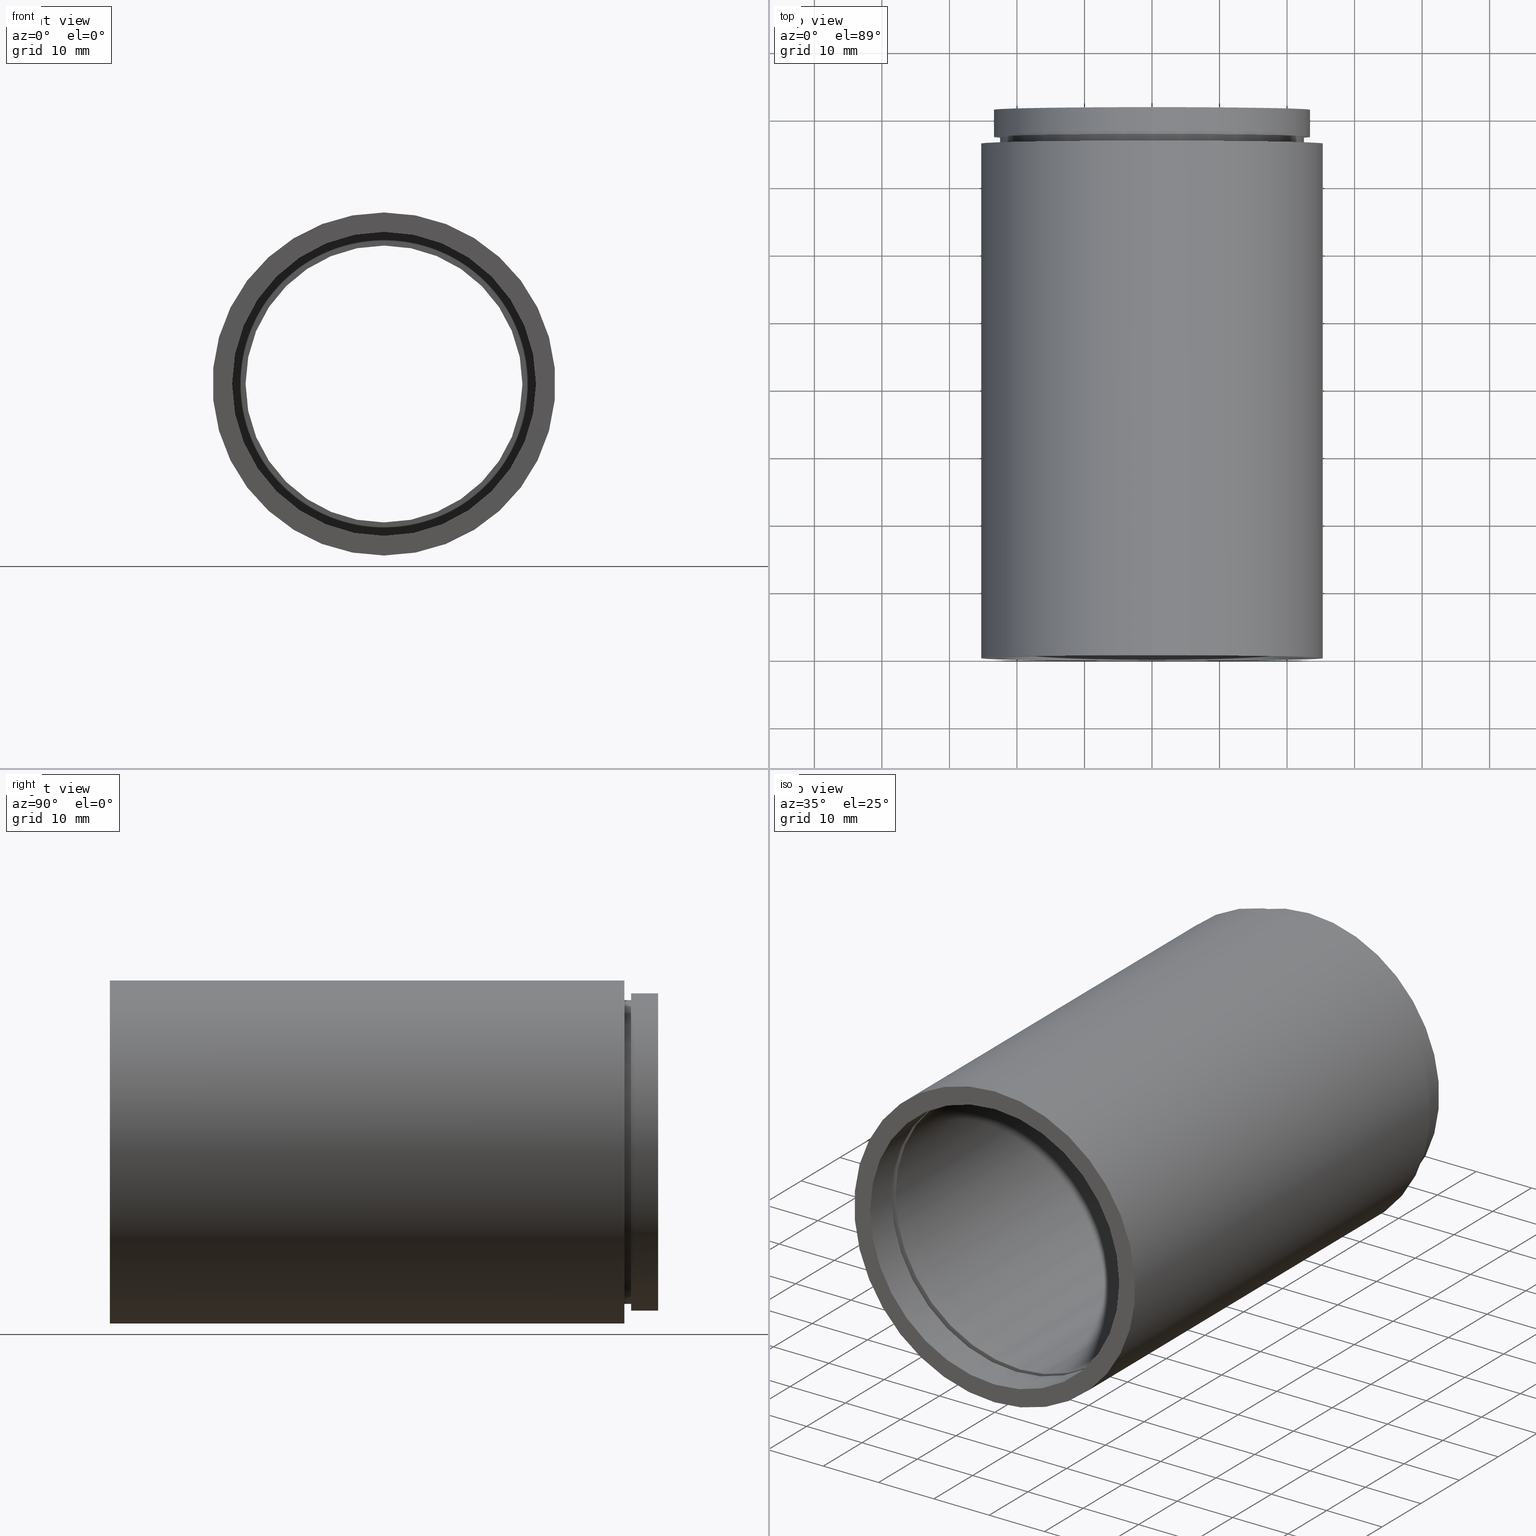
[diagram: canonical four-view strip — front | top / right | iso, engineering-drawing reading convention]
A machine part, canonical four-view strip (front | top / right | iso — engineering-drawing reading convention). The complete STEP part file that produces these views, byte-faithful:
ISO-10303-21;
HEADER;
FILE_DESCRIPTION (( 'STEP AP214' ),
    '1' );
FILE_NAME ('503011.STEP',
    '2019-09-04T07:34:36',
    ( '' ),
    ( '' ),
    'SwSTEP 2.0',
    'SolidWorks 2016',
    '' );
FILE_SCHEMA (( 'AUTOMOTIVE_DESIGN' ));
ENDSEC;

DATA;
#1 = DIRECTION ( 'NONE',  ( 0.0000000000000000000, 0.0000000000000000000, 1.000000000000000000 ) ) ;
#2 = EDGE_CURVE ( 'NONE', #404, #81, #217, .T. ) ;
#3 =( NAMED_UNIT ( * ) PLANE_ANGLE_UNIT ( ) SI_UNIT ( $, .RADIAN. ) );
#4 = UNCERTAINTY_MEASURE_WITH_UNIT (LENGTH_MEASURE( 1.000000000000000100E-005 ), #578, 'distance_accuracy_value', 'NONE');
#5 = VECTOR ( 'NONE', #87, 1000.000000000000000 ) ;
#6 = CARTESIAN_POINT ( 'NONE',  ( 0.0000000000000000000, 161.3761669434274500, 22.50000000000002100 ) ) ;
#7 =( NAMED_UNIT ( * ) PLANE_ANGLE_UNIT ( ) SI_UNIT ( $, .RADIAN. ) );
#8 = AXIS2_PLACEMENT_3D ( 'NONE', #257, #319, #1 ) ;
#9 = SURFACE_STYLE_USAGE ( .BOTH. , #746 ) ;
#10 = DIRECTION ( 'NONE',  ( -0.0000000000000000000, 1.000000000000000000, -0.0000000000000000000 ) ) ;
#11 = AXIS2_PLACEMENT_3D ( 'NONE', #72, #513, #571 ) ;
#12 = CIRCLE ( 'NONE', #753, 23.49999999999986500 ) ;
#13 = EDGE_CURVE ( 'NONE', #609, #79, #711, .T. ) ;
#14 = DIRECTION ( 'NONE',  ( -0.0000000000000000000, 1.000000000000000000, -0.0000000000000000000 ) ) ;
#15 = CIRCLE ( 'NONE', #339, 22.49999999999987200 ) ;
#16 = DIRECTION ( 'NONE',  ( -0.0000000000000000000, 1.000000000000000000, -0.0000000000000000000 ) ) ;
#17 = MECHANICAL_DESIGN_GEOMETRIC_PRESENTATION_REPRESENTATION (  '', ( #60 ), #256 ) ;
#18 = CLOSED_SHELL ( 'NONE', ( #633, #582, #399, #590, #452, #459, #20, #272, #86, #698, #408, #147, #715, #575, #80, #515, #768, #267, #201, #396, #388, #706, #570, #288 ) ) ;
#19 = DIRECTION ( 'NONE',  ( -0.0000000000000000000, 1.000000000000000000, -0.0000000000000000000 ) ) ;
#20 = ADVANCED_FACE ( 'NONE', ( #567 ), #216, .F. ) ;
#21 = CARTESIAN_POINT ( 'NONE',  ( 0.0000000000000000000, 6.499999999999977800, 0.0000000000000000000 ) ) ;
#22 = CARTESIAN_POINT ( 'NONE',  ( 0.0000000000000000000, 73.19999999999998900, 0.0000000000000000000 ) ) ;
#23 = DIRECTION ( 'NONE',  ( -0.0000000000000000000, 1.000000000000000000, 0.0000000000000000000 ) ) ;
#24 = PRESENTATION_LAYER_ASSIGNMENT (  '', '', ( #372 ) ) ;
#25 = CARTESIAN_POINT ( 'NONE',  ( 2.877919977996263800E-015, 161.3761669434274500, -23.49999999999986500 ) ) ;
#26 = MECHANICAL_DESIGN_GEOMETRIC_PRESENTATION_REPRESENTATION (  '', ( #211 ), #180 ) ;
#27 = PRESENTATION_STYLE_ASSIGNMENT (( #569 ) ) ;
#28 = DIRECTION ( 'NONE',  ( 0.0000000000000000000, 0.0000000000000000000, 1.000000000000000000 ) ) ;
#29 = VECTOR ( 'NONE', #428, 1000.000000000000000 ) ;
#30 = ORIENTED_EDGE ( 'NONE', *, *, #610, .F. ) ;
#31 = CARTESIAN_POINT ( 'NONE',  ( 0.0000000000000000000, 76.20000000000000300, 0.0000000000000000000 ) ) ;
#32 = EDGE_CURVE ( 'NONE', #298, #317, #800, .T. ) ;
#33 =( NAMED_UNIT ( * ) SI_UNIT ( $, .STERADIAN. ) SOLID_ANGLE_UNIT ( ) );
#34 = DIRECTION ( 'NONE',  ( -0.0000000000000000000, 1.000000000000000000, -0.0000000000000000000 ) ) ;
#35 = MECHANICAL_DESIGN_GEOMETRIC_PRESENTATION_REPRESENTATION (  '', ( #184 ), #788 ) ;
#36 = CYLINDRICAL_SURFACE ( 'NONE', #191, 25.40000000000001300 ) ;
#37 = CIRCLE ( 'NONE', #702, 22.50000000000002100 ) ;
#38 = CARTESIAN_POINT ( 'NONE',  ( 20.50000000000001100, 81.19999999999998900, 0.0000000000000000000 ) ) ;
#39 = FACE_OUTER_BOUND ( 'NONE', #68, .T. ) ;
#40 =( NAMED_UNIT ( * ) SI_UNIT ( $, .STERADIAN. ) SOLID_ANGLE_UNIT ( ) );
#41 = EDGE_LOOP ( 'NONE', ( #629, #58, #782, #640 ) ) ;
#42 = EDGE_CURVE ( 'NONE', #438, #432, #789, .T. ) ;
#43 = VERTEX_POINT ( 'NONE', #127 ) ;
#44 = SURFACE_SIDE_STYLE ('',( #129 ) ) ;
#45 = SURFACE_STYLE_USAGE ( .BOTH. , #44 ) ;
#46 = FACE_OUTER_BOUND ( 'NONE', #359, .T. ) ;
#47 = ORIENTED_EDGE ( 'NONE', *, *, #146, .T. ) ;
#48 = PLANE ( 'NONE',  #593 ) ;
#49 = EDGE_LOOP ( 'NONE', ( #111, #235, #681, #701 ) ) ;
#50 = DIRECTION ( 'NONE',  ( 0.0000000000000000000, 0.0000000000000000000, 1.000000000000000000 ) ) ;
#51 = AXIS2_PLACEMENT_3D ( 'NONE', #69, #74, #446 ) ;
#52 =( GEOMETRIC_REPRESENTATION_CONTEXT ( 3 ) GLOBAL_UNCERTAINTY_ASSIGNED_CONTEXT ( ( #4 ) ) GLOBAL_UNIT_ASSIGNED_CONTEXT ( ( #578, #212, #759 ) ) REPRESENTATION_CONTEXT ( 'NONE', 'WORKASPACE' ) );
#53 = ADVANCED_BREP_SHAPE_REPRESENTATION ( '503011', ( #213, #356 ), #266 ) ;
#54 =( NAMED_UNIT ( * ) PLANE_ANGLE_UNIT ( ) SI_UNIT ( $, .RADIAN. ) );
#55 = FACE_BOUND ( 'NONE', #170, .T. ) ;
#56 = FACE_OUTER_BOUND ( 'NONE', #471, .T. ) ;
#57 = DIRECTION ( 'NONE',  ( 0.0000000000000000000, 0.0000000000000000000, 1.000000000000000000 ) ) ;
#58 = ORIENTED_EDGE ( 'NONE', *, *, #169, .T. ) ;
#59 = SURFACE_SIDE_STYLE ('',( #224 ) ) ;
#60 = STYLED_ITEM ( 'NONE', ( #483 ), #399 ) ;
#61 = DIRECTION ( 'NONE',  ( 0.0000000000000000000, 0.0000000000000000000, 1.000000000000000000 ) ) ;
#62 = FILL_AREA_STYLE ('',( #624 ) ) ;
#63 = CARTESIAN_POINT ( 'NONE',  ( 0.0000000000000000000, 161.3761669434274500, 0.0000000000000000000 ) ) ;
#64 = PRESENTATION_LAYER_ASSIGNMENT (  '', '', ( #184 ) ) ;
#65 = DIRECTION ( 'NONE',  ( 0.0000000000000000000, 0.0000000000000000000, 1.000000000000000000 ) ) ;
#66 = VERTEX_POINT ( 'NONE', #626 ) ;
#67 = ORIENTED_EDGE ( 'NONE', *, *, #284, .T. ) ;
#68 = EDGE_LOOP ( 'NONE', ( #254, #650, #76, #133 ) ) ;
#69 = CARTESIAN_POINT ( 'NONE',  ( 0.0000000000000000000, 6.499999999999977800, 0.0000000000000000000 ) ) ;
#70 = EDGE_CURVE ( 'NONE', #232, #357, #657, .T. ) ;
#71 = CARTESIAN_POINT ( 'NONE',  ( 2.510525938252075300E-015, 81.19999999999998900, -20.50000000000001100 ) ) ;
#72 = CARTESIAN_POINT ( 'NONE',  ( 25.40000000000000900, 76.20000000000000300, 0.0000000000000000000 ) ) ;
#73 = COLOUR_RGB ( '',1.000000000000000000, 1.000000000000000000, 1.000000000000000000 ) ;
#74 = DIRECTION ( 'NONE',  ( -0.0000000000000000000, 1.000000000000000000, -0.0000000000000000000 ) ) ;
#75 = CARTESIAN_POINT ( 'NONE',  ( 2.877919977996264100E-015, 161.3761669434274500, -23.49999999999986900 ) ) ;
#76 = ORIENTED_EDGE ( 'NONE', *, *, #653, .T. ) ;
#77 = MECHANICAL_DESIGN_GEOMETRIC_PRESENTATION_REPRESENTATION (  '', ( #220 ), #175 ) ;
#78 = DIRECTION ( 'NONE',  ( 0.0000000000000000000, -1.000000000000000000, 0.0000000000000000000 ) ) ;
#79 = VERTEX_POINT ( 'NONE', #617 ) ;
#80 = ADVANCED_FACE ( 'NONE', ( #490, #619 ), #202, .F. ) ;
#81 = VERTEX_POINT ( 'NONE', #199 ) ;
#82 = PLANE ( 'NONE',  #11 ) ;
#83 =( NAMED_UNIT ( * ) SI_UNIT ( $, .STERADIAN. ) SOLID_ANGLE_UNIT ( ) );
#84 = CARTESIAN_POINT ( 'NONE',  ( 3.110602869834278000E-015, 76.20000000000000300, -25.40000000000000900 ) ) ;
#85 = EDGE_CURVE ( 'NONE', #731, #802, #15, .T. ) ;
#86 = ADVANCED_FACE ( 'NONE', ( #466, #601 ), #82, .F. ) ;
#87 = DIRECTION ( 'NONE',  ( -0.0000000000000000000, 1.000000000000000000, -0.0000000000000000000 ) ) ;
#88 = DIRECTION ( 'NONE',  ( 0.0000000000000000000, 0.0000000000000000000, 1.000000000000000000 ) ) ;
#89 = FILL_AREA_STYLE ('',( #163 ) ) ;
#90 = LINE ( 'NONE', #520, #509 ) ;
#91 = DIRECTION ( 'NONE',  ( 0.0000000000000000000, 0.0000000000000000000, 1.000000000000000000 ) ) ;
#92 = ORIENTED_EDGE ( 'NONE', *, *, #197, .T. ) ;
#93 = EDGE_LOOP ( 'NONE', ( #469, #329, #689, #364 ) ) ;
#94 = DIRECTION ( 'NONE',  ( 1.000000000000000000, 0.0000000000000000000, 0.0000000000000000000 ) ) ;
#95 = DIRECTION ( 'NONE',  ( 0.0000000000000000000, 0.0000000000000000000, 1.000000000000000000 ) ) ;
#96 = MECHANICAL_DESIGN_GEOMETRIC_PRESENTATION_REPRESENTATION (  '', ( #178 ), #522 ) ;
#97 = APPLICATION_CONTEXT ( 'automotive_design' ) ;
#98 = CYLINDRICAL_SURFACE ( 'NONE', #113, 23.49999999999986500 ) ;
#99 = CARTESIAN_POINT ( 'NONE',  ( 0.0000000000000000000, 77.20000000000000300, 0.0000000000000000000 ) ) ;
#100 = CYLINDRICAL_SURFACE ( 'NONE', #106, 20.50000000000001100 ) ;
#101 = ORIENTED_EDGE ( 'NONE', *, *, #70, .F. ) ;
#102 = DIRECTION ( 'NONE',  ( -0.0000000000000000000, 1.000000000000000000, -0.0000000000000000000 ) ) ;
#103 = EDGE_CURVE ( 'NONE', #414, #771, #153, .T. ) ;
#104 = ORIENTED_EDGE ( 'NONE', *, *, #737, .T. ) ;
#105 =( NAMED_UNIT ( * ) SI_UNIT ( $, .STERADIAN. ) SOLID_ANGLE_UNIT ( ) );
#106 = AXIS2_PLACEMENT_3D ( 'NONE', #529, #534, #301 ) ;
#107 = COLOUR_RGB ( '',1.000000000000000000, 1.000000000000000000, 1.000000000000000000 ) ;
#108 = FACE_OUTER_BOUND ( 'NONE', #287, .T. ) ;
#109 = LINE ( 'NONE', #647, #285 ) ;
#110 = DIRECTION ( 'NONE',  ( 0.0000000000000000000, 0.0000000000000000000, 1.000000000000000000 ) ) ;
#111 = ORIENTED_EDGE ( 'NONE', *, *, #296, .T. ) ;
#112 = ORIENTED_EDGE ( 'NONE', *, *, #458, .F. ) ;
#113 = AXIS2_PLACEMENT_3D ( 'NONE', #560, #687, #756 ) ;
#114 = EDGE_CURVE ( 'NONE', #546, #81, #667, .T. ) ;
#115 = EDGE_CURVE ( 'NONE', #43, #728, #747, .T. ) ;
#116 = SURFACE_STYLE_USAGE ( .BOTH. , #676 ) ;
#117 = FACE_OUTER_BOUND ( 'NONE', #660, .T. ) ;
#118 = CIRCLE ( 'NONE', #351, 23.49999999999987200 ) ;
#119 = CIRCLE ( 'NONE', #154, 23.49999999999986500 ) ;
#120 = ORIENTED_EDGE ( 'NONE', *, *, #599, .T. ) ;
#121 =( LENGTH_UNIT ( ) NAMED_UNIT ( * ) SI_UNIT ( .MILLI., .METRE. ) );
#122 = VERTEX_POINT ( 'NONE', #84 ) ;
#123 = ORIENTED_EDGE ( 'NONE', *, *, #128, .F. ) ;
#124 = CARTESIAN_POINT ( 'NONE',  ( 0.0000000000000000000, 161.3761669434274500, 0.0000000000000000000 ) ) ;
#125 = AXIS2_PLACEMENT_3D ( 'NONE', #779, #23, #219 ) ;
#126 = CARTESIAN_POINT ( 'NONE',  ( 0.0000000000000000000, 73.19999999999998900, 23.49999999999986500 ) ) ;
#127 = CARTESIAN_POINT ( 'NONE',  ( 2.510525938252075300E-015, 74.19999999999998900, -20.50000000000001100 ) ) ;
#128 = EDGE_CURVE ( 'NONE', #122, #553, #401, .T. ) ;
#129 = SURFACE_STYLE_FILL_AREA ( #726 ) ;
#130 = DIRECTION ( 'NONE',  ( -0.0000000000000000000, 1.000000000000000000, -0.0000000000000000000 ) ) ;
#131 = CARTESIAN_POINT ( 'NONE',  ( 0.0000000000000000000, 6.499999999999977800, 0.0000000000000000000 ) ) ;
#132 = EDGE_LOOP ( 'NONE', ( #691, #326, #416, #243 ) ) ;
#133 = ORIENTED_EDGE ( 'NONE', *, *, #786, .T. ) ;
#134 = DIRECTION ( 'NONE',  ( -0.0000000000000000000, 1.000000000000000000, -0.0000000000000000000 ) ) ;
#135 = CARTESIAN_POINT ( 'NONE',  ( 0.0000000000000000000, 161.3761669434274500, 0.0000000000000000000 ) ) ;
#136 = LINE ( 'NONE', #341, #776 ) ;
#137 = DIRECTION ( 'NONE',  ( 0.0000000000000000000, 0.0000000000000000000, 1.000000000000000000 ) ) ;
#138 = VECTOR ( 'NONE', #441, 1000.000000000000000 ) ;
#139 = COLOUR_RGB ( '',1.000000000000000000, 1.000000000000000000, 1.000000000000000000 ) ;
#140 = AXIS2_PLACEMENT_3D ( 'NONE', #787, #796, #723 ) ;
#141 = ORIENTED_EDGE ( 'NONE', *, *, #13, .F. ) ;
#142 = CARTESIAN_POINT ( 'NONE',  ( 0.0000000000000000000, 74.19999999999998900, 0.0000000000000000000 ) ) ;
#143 = VERTEX_POINT ( 'NONE', #453 ) ;
#144 = VERTEX_POINT ( 'NONE', #152 ) ;
#145 = DIRECTION ( 'NONE',  ( 0.0000000000000000000, 0.0000000000000000000, 1.000000000000000000 ) ) ;
#146 = EDGE_CURVE ( 'NONE', #432, #438, #305, .T. ) ;
#147 = ADVANCED_FACE ( 'NONE', ( #39 ), #370, .F. ) ;
#148 = DIRECTION ( 'NONE',  ( 0.0000000000000000000, 0.0000000000000000000, 1.000000000000000000 ) ) ;
#149 = CARTESIAN_POINT ( 'NONE',  ( 0.0000000000000000000, 76.20000000000000300, 0.0000000000000000000 ) ) ;
#150 = CARTESIAN_POINT ( 'NONE',  ( 0.0000000000000000000, 161.3761669434274500, 22.49999999999987200 ) ) ;
#151 = CYLINDRICAL_SURFACE ( 'NONE', #648, 23.49999999999986500 ) ;
#152 = CARTESIAN_POINT ( 'NONE',  ( 0.0000000000000000000, 5.499999999999976900, 23.49999999999986500 ) ) ;
#153 = CIRCLE ( 'NONE', #247, 23.49999999999986500 ) ;
#154 = AXIS2_PLACEMENT_3D ( 'NONE', #591, #34, #95 ) ;
#155 = DIRECTION ( 'NONE',  ( 0.0000000000000000000, -0.0000000000000000000, -1.000000000000000000 ) ) ;
#156 = EDGE_LOOP ( 'NONE', ( #523, #722 ) ) ;
#157 = ORIENTED_EDGE ( 'NONE', *, *, #634, .T. ) ;
#158 = CARTESIAN_POINT ( 'NONE',  ( 0.0000000000000000000, 161.3761669434274500, 23.49999999999986900 ) ) ;
#159 = VERTEX_POINT ( 'NONE', #283 ) ;
#160 = CARTESIAN_POINT ( 'NONE',  ( 0.0000000000000000000, 81.19999999999998900, 0.0000000000000000000 ) ) ;
#161 = CARTESIAN_POINT ( 'NONE',  ( 0.0000000000000000000, 81.19999999999998900, 20.50000000000001100 ) ) ;
#162 = MECHANICAL_DESIGN_GEOMETRIC_PRESENTATION_REPRESENTATION (  '', ( #794 ), #542 ) ;
#163 = FILL_AREA_STYLE_COLOUR ( '', #215 ) ;
#164 = CARTESIAN_POINT ( 'NONE',  ( 2.877919977996263800E-015, 161.3761669434274500, -23.49999999999986500 ) ) ;
#165 = CIRCLE ( 'NONE', #636, 20.50000000000001100 ) ;
#166 = FACE_OUTER_BOUND ( 'NONE', #262, .T. ) ;
#167 = EDGE_CURVE ( 'NONE', #801, #404, #498, .T. ) ;
#168 = APPLICATION_PROTOCOL_DEFINITION ( 'draft international standard', 'automotive_design', 1998, #97 ) ;
#169 = EDGE_CURVE ( 'NONE', #143, #79, #538, .T. ) ;
#170 = EDGE_LOOP ( 'NONE', ( #381, #424 ) ) ;
#171 = ORIENTED_EDGE ( 'NONE', *, *, #419, .F. ) ;
#172 = CARTESIAN_POINT ( 'NONE',  ( 2.755455298081529000E-015, 77.20000000000000300, -22.49999999999987200 ) ) ;
#173 = CARTESIAN_POINT ( 'NONE',  ( 0.0000000000000000000, 74.19999999999998900, 0.0000000000000000000 ) ) ;
#174 = CARTESIAN_POINT ( 'NONE',  ( 0.0000000000000000000, 161.3761669434274500, 0.0000000000000000000 ) ) ;
#175 =( GEOMETRIC_REPRESENTATION_CONTEXT ( 3 ) GLOBAL_UNCERTAINTY_ASSIGNED_CONTEXT ( ( #391 ) ) GLOBAL_UNIT_ASSIGNED_CONTEXT ( ( #121, #54, #185 ) ) REPRESENTATION_CONTEXT ( 'NONE', 'WORKASPACE' ) );
#176 = FACE_OUTER_BOUND ( 'NONE', #196, .T. ) ;
#177 = CARTESIAN_POINT ( 'NONE',  ( 2.755455298081547100E-015, 6.499999999999977800, -22.50000000000002100 ) ) ;
#178 = STYLED_ITEM ( 'NONE', ( #231 ), #213 ) ;
#179 = EDGE_LOOP ( 'NONE', ( #671, #761 ) ) ;
#180 =( GEOMETRIC_REPRESENTATION_CONTEXT ( 3 ) GLOBAL_UNCERTAINTY_ASSIGNED_CONTEXT ( ( #677 ) ) GLOBAL_UNIT_ASSIGNED_CONTEXT ( ( #712, #347, #40 ) ) REPRESENTATION_CONTEXT ( 'NONE', 'WORKASPACE' ) );
#181 = DIRECTION ( 'NONE',  ( -0.0000000000000000000, 1.000000000000000000, -0.0000000000000000000 ) ) ;
#182 = CARTESIAN_POINT ( 'NONE',  ( 25.40000000000002000, -1.460226537307042600E-014, 0.0000000000000000000 ) ) ;
#183 = CIRCLE ( 'NONE', #764, 22.49999999999987200 ) ;
#184 = STYLED_ITEM ( 'NONE', ( #778 ), #452 ) ;
#185 =( NAMED_UNIT ( * ) SI_UNIT ( $, .STERADIAN. ) SOLID_ANGLE_UNIT ( ) );
#186 = EDGE_CURVE ( 'NONE', #357, #438, #90, .T. ) ;
#187 = CIRCLE ( 'NONE', #406, 22.49999999999987200 ) ;
#188 = ORIENTED_EDGE ( 'NONE', *, *, #741, .T. ) ;
#189 = SURFACE_SIDE_STYLE ('',( #295 ) ) ;
#190 = AXIS2_PLACEMENT_3D ( 'NONE', #38, #725, #540 ) ;
#191 = AXIS2_PLACEMENT_3D ( 'NONE', #214, #643, #510 ) ;
#192 = FACE_BOUND ( 'NONE', #194, .T. ) ;
#193 =( LENGTH_UNIT ( ) NAMED_UNIT ( * ) SI_UNIT ( .MILLI., .METRE. ) );
#194 = EDGE_LOOP ( 'NONE', ( #289, #188 ) ) ;
#195 = EDGE_LOOP ( 'NONE', ( #276, #544 ) ) ;
#196 = EDGE_LOOP ( 'NONE', ( #390, #772 ) ) ;
#197 = EDGE_CURVE ( 'NONE', #592, #568, #183, .T. ) ;
#198 = CARTESIAN_POINT ( 'NONE',  ( 2.755455298081529000E-015, 76.20000000000000300, -22.49999999999987200 ) ) ;
#199 = CARTESIAN_POINT ( 'NONE',  ( 0.0000000000000000000, 81.19999999999998900, 23.49999999999986500 ) ) ;
#200 = CARTESIAN_POINT ( 'NONE',  ( 0.0000000000000000000, 161.3761669434274500, 0.0000000000000000000 ) ) ;
#201 = ADVANCED_FACE ( 'NONE', ( #56, #649 ), #278, .F. ) ;
#202 = PLANE ( 'NONE',  #355 ) ;
#203 = FACE_OUTER_BOUND ( 'NONE', #814, .T. ) ;
#204 = AXIS2_PLACEMENT_3D ( 'NONE', #434, #611, #57 ) ;
#205 = FACE_OUTER_BOUND ( 'NONE', #548, .T. ) ;
#206 = COLOUR_RGB ( '',1.000000000000000000, 1.000000000000000000, 1.000000000000000000 ) ;
#207 = DIRECTION ( 'NONE',  ( 0.0000000000000000000, 0.0000000000000000000, 1.000000000000000000 ) ) ;
#208 = VERTEX_POINT ( 'NONE', #716 ) ;
#209 = AXIS2_PLACEMENT_3D ( 'NONE', #131, #375, #61 ) ;
#210 = DIRECTION ( 'NONE',  ( -0.0000000000000000000, 1.000000000000000000, -0.0000000000000000000 ) ) ;
#211 = STYLED_ITEM ( 'NONE', ( #322 ), #53 ) ;
#212 =( NAMED_UNIT ( * ) PLANE_ANGLE_UNIT ( ) SI_UNIT ( $, .RADIAN. ) );
#213 = MANIFOLD_SOLID_BREP ( '��ת1', #18 ) ;
#214 = CARTESIAN_POINT ( 'NONE',  ( 0.0000000000000000000, 161.3761669434274500, 0.0000000000000000000 ) ) ;
#215 = COLOUR_RGB ( '',1.000000000000000000, 1.000000000000000000, 1.000000000000000000 ) ;
#216 = CYLINDRICAL_SURFACE ( 'NONE', #311, 22.50000000000002100 ) ;
#217 = CIRCLE ( 'NONE', #494, 23.49999999999986500 ) ;
#218 = DIRECTION ( 'NONE',  ( -0.0000000000000000000, 1.000000000000000000, -0.0000000000000000000 ) ) ;
#219 = DIRECTION ( 'NONE',  ( 0.0000000000000000000, 0.0000000000000000000, 1.000000000000000000 ) ) ;
#220 = STYLED_ITEM ( 'NONE', ( #386 ), #515 ) ;
#221 = CIRCLE ( 'NONE', #631, 23.49999999999986500 ) ;
#222 = CYLINDRICAL_SURFACE ( 'NONE', #334, 25.40000000000001300 ) ;
#223 = MECHANICAL_DESIGN_GEOMETRIC_PRESENTATION_REPRESENTATION (  '', ( #679 ), #579 ) ;
#224 = SURFACE_STYLE_FILL_AREA ( #808 ) ;
#225 = ORIENTED_EDGE ( 'NONE', *, *, #282, .F. ) ;
#226 = DIRECTION ( 'NONE',  ( -0.0000000000000000000, 1.000000000000000000, -0.0000000000000000000 ) ) ;
#227 = DIRECTION ( 'NONE',  ( 0.0000000000000000000, 0.0000000000000000000, 1.000000000000000000 ) ) ;
#228 = PRODUCT_DEFINITION_FORMATION_WITH_SPECIFIED_SOURCE ( '�κ�', '', #394, .NOT_KNOWN. ) ;
#229 = CARTESIAN_POINT ( 'NONE',  ( 2.877919977996263800E-015, 81.19999999999998900, -23.49999999999986500 ) ) ;
#230 = SURFACE_STYLE_FILL_AREA ( #89 ) ;
#231 = PRESENTATION_STYLE_ASSIGNMENT (( #461 ) ) ;
#232 = VERTEX_POINT ( 'NONE', #527 ) ;
#233 =( NAMED_UNIT ( * ) PLANE_ANGLE_UNIT ( ) SI_UNIT ( $, .RADIAN. ) );
#234 = AXIS2_PLACEMENT_3D ( 'NONE', #135, #499, #316 ) ;
#235 = ORIENTED_EDGE ( 'NONE', *, *, #167, .T. ) ;
#236 = CARTESIAN_POINT ( 'NONE',  ( 0.0000000000000000000, 161.3761669434274500, 20.50000000000001100 ) ) ;
#237 = EDGE_CURVE ( 'NONE', #728, #43, #686, .T. ) ;
#238 = DIRECTION ( 'NONE',  ( 0.0000000000000000000, 0.0000000000000000000, 1.000000000000000000 ) ) ;
#239 = COLOUR_RGB ( '',1.000000000000000000, 1.000000000000000000, 1.000000000000000000 ) ;
#240 = EDGE_LOOP ( 'NONE', ( #306, #479 ) ) ;
#241 = CARTESIAN_POINT ( 'NONE',  ( 2.755455298081547100E-015, -2.775557561562891400E-014, -22.50000000000002100 ) ) ;
#242 = AXIS2_PLACEMENT_3D ( 'NONE', #382, #693, #628 ) ;
#243 = ORIENTED_EDGE ( 'NONE', *, *, #376, .F. ) ;
#244 = UNCERTAINTY_MEASURE_WITH_UNIT (LENGTH_MEASURE( 1.000000000000000100E-005 ), #700, 'distance_accuracy_value', 'NONE');
#245 = DIRECTION ( 'NONE',  ( 0.0000000000000000000, 0.0000000000000000000, 1.000000000000000000 ) ) ;
#246 = DIRECTION ( 'NONE',  ( 0.0000000000000000000, 0.0000000000000000000, 1.000000000000000000 ) ) ;
#247 = AXIS2_PLACEMENT_3D ( 'NONE', #763, #384, #207 ) ;
#248 = SURFACE_STYLE_FILL_AREA ( #652 ) ;
#249 = AXIS2_PLACEMENT_3D ( 'NONE', #455, #505, #148 ) ;
#250 = VECTOR ( 'NONE', #766, 1000.000000000000000 ) ;
#251 = VECTOR ( 'NONE', #333, 1000.000000000000000 ) ;
#252 = DIRECTION ( 'NONE',  ( -0.0000000000000000000, 1.000000000000000000, -0.0000000000000000000 ) ) ;
#253 = VERTEX_POINT ( 'NONE', #161 ) ;
#254 = ORIENTED_EDGE ( 'NONE', *, *, #486, .F. ) ;
#255 = PLANE ( 'NONE',  #470 ) ;
#256 =( GEOMETRIC_REPRESENTATION_CONTEXT ( 3 ) GLOBAL_UNCERTAINTY_ASSIGNED_CONTEXT ( ( #354 ) ) GLOBAL_UNIT_ASSIGNED_CONTEXT ( ( #476, #664, #533 ) ) REPRESENTATION_CONTEXT ( 'NONE', 'WORKASPACE' ) );
#257 = CARTESIAN_POINT ( 'NONE',  ( 0.0000000000000000000, 81.19999999999998900, 0.0000000000000000000 ) ) ;
#258 = UNCERTAINTY_MEASURE_WITH_UNIT (LENGTH_MEASURE( 1.000000000000000100E-005 ), #491, 'distance_accuracy_value', 'NONE');
#259 = CYLINDRICAL_SURFACE ( 'NONE', #557, 20.50000000000001100 ) ;
#260 = CIRCLE ( 'NONE', #777, 22.50000000000002100 ) ;
#261 = EDGE_LOOP ( 'NONE', ( #430, #729, #612, #421 ) ) ;
#262 = EDGE_LOOP ( 'NONE', ( #627, #67 ) ) ;
#263 = DIRECTION ( 'NONE',  ( -0.0000000000000000000, 1.000000000000000000, -0.0000000000000000000 ) ) ;
#264 = AXIS2_PLACEMENT_3D ( 'NONE', #149, #10, #632 ) ;
#265 = CARTESIAN_POINT ( 'NONE',  ( 0.0000000000000000000, 74.19999999999998900, 20.50000000000001100 ) ) ;
#266 =( GEOMETRIC_REPRESENTATION_CONTEXT ( 3 ) GLOBAL_UNCERTAINTY_ASSIGNED_CONTEXT ( ( #292 ) ) GLOBAL_UNIT_ASSIGNED_CONTEXT ( ( #594, #352, #33 ) ) REPRESENTATION_CONTEXT ( 'NONE', 'WORKASPACE' ) );
#267 = ADVANCED_FACE ( 'NONE', ( #580 ), #618, .F. ) ;
#268 = DIRECTION ( 'NONE',  ( -0.0000000000000000000, 1.000000000000000000, -0.0000000000000000000 ) ) ;
#269 =( NAMED_UNIT ( * ) PLANE_ANGLE_UNIT ( ) SI_UNIT ( $, .RADIAN. ) );
#270 = DIRECTION ( 'NONE',  ( 0.0000000000000000000, 0.0000000000000000000, 1.000000000000000000 ) ) ;
#271 = LINE ( 'NONE', #25, #608 ) ;
#272 = ADVANCED_FACE ( 'NONE', ( #46 ), #222, .T. ) ;
#273 = UNCERTAINTY_MEASURE_WITH_UNIT (LENGTH_MEASURE( 1.000000000000000100E-005 ), #193, 'distance_accuracy_value', 'NONE');
#274 = DIRECTION ( 'NONE',  ( 0.0000000000000000000, 0.0000000000000000000, 1.000000000000000000 ) ) ;
#275 = EDGE_LOOP ( 'NONE', ( #638, #659 ) ) ;
#276 = ORIENTED_EDGE ( 'NONE', *, *, #70, .T. ) ;
#277 = DIRECTION ( 'NONE',  ( -0.0000000000000000000, 1.000000000000000000, -0.0000000000000000000 ) ) ;
#278 = PLANE ( 'NONE',  #125 ) ;
#279 = AXIS2_PLACEMENT_3D ( 'NONE', #200, #440, #65 ) ;
#280 = AXIS2_PLACEMENT_3D ( 'NONE', #402, #639, #697 ) ;
#281 = CARTESIAN_POINT ( 'NONE',  ( 0.0000000000000000000, 161.3761669434274500, 0.0000000000000000000 ) ) ;
#282 = EDGE_CURVE ( 'NONE', #532, #771, #109, .T. ) ;
#283 = CARTESIAN_POINT ( 'NONE',  ( 0.0000000000000000000, -2.775557561562891400E-014, 22.50000000000002100 ) ) ;
#284 = EDGE_CURVE ( 'NONE', #143, #144, #119, .T. ) ;
#285 = VECTOR ( 'NONE', #348, 1000.000000000000000 ) ;
#286 = DIRECTION ( 'NONE',  ( -0.0000000000000000000, 1.000000000000000000, -0.0000000000000000000 ) ) ;
#287 = EDGE_LOOP ( 'NONE', ( #477, #447, #748, #225 ) ) ;
#288 = ADVANCED_FACE ( 'NONE', ( #519 ), #436, .T. ) ;
#289 = ORIENTED_EDGE ( 'NONE', *, *, #85, .T. ) ;
#290 = DIRECTION ( 'NONE',  ( -0.0000000000000000000, 1.000000000000000000, -0.0000000000000000000 ) ) ;
#291 = ORIENTED_EDGE ( 'NONE', *, *, #749, .T. ) ;
#292 = UNCERTAINTY_MEASURE_WITH_UNIT (LENGTH_MEASURE( 1.000000000000000100E-005 ), #594, 'distance_accuracy_value', 'NONE');
#293 = AXIS2_PLACEMENT_3D ( 'NONE', #503, #566, #321 ) ;
#294 = CARTESIAN_POINT ( 'NONE',  ( 0.0000000000000000000, -2.775557561562891400E-014, 0.0000000000000000000 ) ) ;
#295 = SURFACE_STYLE_FILL_AREA ( #487 ) ;
#296 = EDGE_CURVE ( 'NONE', #546, #801, #429, .T. ) ;
#297 = PRESENTATION_STYLE_ASSIGNMENT (( #516 ) ) ;
#298 = VERTEX_POINT ( 'NONE', #473 ) ;
#299 = EDGE_LOOP ( 'NONE', ( #120, #651 ) ) ;
#300 = DIRECTION ( 'NONE',  ( -0.0000000000000000000, 1.000000000000000000, -0.0000000000000000000 ) ) ;
#301 = DIRECTION ( 'NONE',  ( 0.0000000000000000000, 0.0000000000000000000, 1.000000000000000000 ) ) ;
#302 = FILL_AREA_STYLE_COLOUR ( '', #239 ) ;
#303 = FACE_OUTER_BOUND ( 'NONE', #49, .T. ) ;
#304 = FACE_BOUND ( 'NONE', #493, .T. ) ;
#305 = CIRCLE ( 'NONE', #585, 22.50000000000002100 ) ;
#306 = ORIENTED_EDGE ( 'NONE', *, *, #458, .T. ) ;
#307 = AXIS2_PLACEMENT_3D ( 'NONE', #294, #300, #418 ) ;
#308 = EDGE_LOOP ( 'NONE', ( #337, #340 ) ) ;
#309 = ORIENTED_EDGE ( 'NONE', *, *, #186, .F. ) ;
#310 = FILL_AREA_STYLE_COLOUR ( '', #139 ) ;
#311 = AXIS2_PLACEMENT_3D ( 'NONE', #63, #500, #489 ) ;
#312 = FACE_BOUND ( 'NONE', #275, .T. ) ;
#313 = CARTESIAN_POINT ( 'NONE',  ( 0.0000000000000000000, 76.20000000000000300, 25.40000000000000900 ) ) ;
#314 = DIRECTION ( 'NONE',  ( -0.0000000000000000000, 1.000000000000000000, -0.0000000000000000000 ) ) ;
#315 = PRODUCT_DEFINITION_SHAPE ( 'NONE', 'NONE',  #517 ) ;
#316 = DIRECTION ( 'NONE',  ( 0.0000000000000000000, 0.0000000000000000000, 1.000000000000000000 ) ) ;
#317 = VERTEX_POINT ( 'NONE', #464 ) ;
#318 = ORIENTED_EDGE ( 'NONE', *, *, #610, .T. ) ;
#319 = DIRECTION ( 'NONE',  ( -0.0000000000000000000, 1.000000000000000000, -0.0000000000000000000 ) ) ;
#320 =( GEOMETRIC_REPRESENTATION_CONTEXT ( 3 ) GLOBAL_UNCERTAINTY_ASSIGNED_CONTEXT ( ( #244 ) ) GLOBAL_UNIT_ASSIGNED_CONTEXT ( ( #700, #269, #83 ) ) REPRESENTATION_CONTEXT ( 'NONE', 'WORKASPACE' ) );
#321 = DIRECTION ( 'NONE',  ( 0.0000000000000000000, 0.0000000000000000000, 1.000000000000000000 ) ) ;
#322 = PRESENTATION_STYLE_ASSIGNMENT (( #775 ) ) ;
#323 = LINE ( 'NONE', #330, #758 ) ;
#324 = CIRCLE ( 'NONE', #658, 23.49999999999986500 ) ;
#325 = CARTESIAN_POINT ( 'NONE',  ( 0.0000000000000000000, 6.499999999999977800, 23.49999999999986500 ) ) ;
#326 = ORIENTED_EDGE ( 'NONE', *, *, #563, .T. ) ;
#327 = DIRECTION ( 'NONE',  ( 0.0000000000000000000, 0.0000000000000000000, 1.000000000000000000 ) ) ;
#328 = AXIS2_PLACEMENT_3D ( 'NONE', #21, #704, #338 ) ;
#329 = ORIENTED_EDGE ( 'NONE', *, *, #433, .F. ) ;
#330 = CARTESIAN_POINT ( 'NONE',  ( 2.510525938252075300E-015, 161.3761669434274500, -20.50000000000001100 ) ) ;
#331 = SURFACE_SIDE_STYLE ('',( #380 ) ) ;
#332 = DIRECTION ( 'NONE',  ( 0.0000000000000000000, 0.0000000000000000000, 1.000000000000000000 ) ) ;
#333 = DIRECTION ( 'NONE',  ( -0.0000000000000000000, 1.000000000000000000, -0.0000000000000000000 ) ) ;
#334 = AXIS2_PLACEMENT_3D ( 'NONE', #400, #596, #28 ) ;
#335 = COLOUR_RGB ( '',1.000000000000000000, 1.000000000000000000, 1.000000000000000000 ) ;
#336 = DIRECTION ( 'NONE',  ( -0.0000000000000000000, 1.000000000000000000, -0.0000000000000000000 ) ) ;
#337 = ORIENTED_EDGE ( 'NONE', *, *, #798, .F. ) ;
#338 = DIRECTION ( 'NONE',  ( 0.0000000000000000000, 0.0000000000000000000, 1.000000000000000000 ) ) ;
#339 = AXIS2_PLACEMENT_3D ( 'NONE', #561, #268, #767 ) ;
#340 = ORIENTED_EDGE ( 'NONE', *, *, #197, .F. ) ;
#341 = CARTESIAN_POINT ( 'NONE',  ( 0.0000000000000000000, 161.3761669434274500, 25.40000000000001300 ) ) ;
#342 = PRODUCT_RELATED_PRODUCT_CATEGORY ( 'part', '', ( #394 ) ) ;
#343 =( NAMED_UNIT ( * ) PLANE_ANGLE_UNIT ( ) SI_UNIT ( $, .RADIAN. ) );
#344 = PLANE ( 'NONE',  #280 ) ;
#345 =( NAMED_UNIT ( * ) SI_UNIT ( $, .STERADIAN. ) SOLID_ANGLE_UNIT ( ) );
#346 = LINE ( 'NONE', #150, #5 ) ;
#347 =( NAMED_UNIT ( * ) PLANE_ANGLE_UNIT ( ) SI_UNIT ( $, .RADIAN. ) );
#348 = DIRECTION ( 'NONE',  ( -0.0000000000000000000, 1.000000000000000000, -0.0000000000000000000 ) ) ;
#349 = ORIENTED_EDGE ( 'NONE', *, *, #695, .F. ) ;
#350 = ORIENTED_EDGE ( 'NONE', *, *, #169, .F. ) ;
#351 = AXIS2_PLACEMENT_3D ( 'NONE', #600, #181, #661 ) ;
#352 =( NAMED_UNIT ( * ) PLANE_ANGLE_UNIT ( ) SI_UNIT ( $, .RADIAN. ) );
#353 = DIRECTION ( 'NONE',  ( 0.0000000000000000000, 0.0000000000000000000, 1.000000000000000000 ) ) ;
#354 = UNCERTAINTY_MEASURE_WITH_UNIT (LENGTH_MEASURE( 1.000000000000000100E-005 ), #476, 'distance_accuracy_value', 'NONE');
#355 = AXIS2_PLACEMENT_3D ( 'NONE', #641, #444, #327 ) ;
#356 = AXIS2_PLACEMENT_3D ( 'NONE', #597, #472, #94 ) ;
#357 = VERTEX_POINT ( 'NONE', #177 ) ;
#358 = FILL_AREA_STYLE_COLOUR ( '', #413 ) ;
#359 = EDGE_LOOP ( 'NONE', ( #713, #792, #112, #528 ) ) ;
#360 = CARTESIAN_POINT ( 'NONE',  ( 0.0000000000000000000, 161.3761669434274500, 0.0000000000000000000 ) ) ;
#361 = LINE ( 'NONE', #684, #696 ) ;
#362 = FACE_OUTER_BOUND ( 'NONE', #630, .T. ) ;
#363 = AXIS2_PLACEMENT_3D ( 'NONE', #173, #774, #783 ) ;
#364 = ORIENTED_EDGE ( 'NONE', *, *, #508, .T. ) ;
#365 = ORIENTED_EDGE ( 'NONE', *, *, #114, .T. ) ;
#366 = EDGE_CURVE ( 'NONE', #159, #511, #699, .T. ) ;
#367 = DIRECTION ( 'NONE',  ( -0.0000000000000000000, 1.000000000000000000, -0.0000000000000000000 ) ) ;
#368 = CARTESIAN_POINT ( 'NONE',  ( 0.0000000000000000000, 5.499999999999976900, 0.0000000000000000000 ) ) ;
#369 = FACE_OUTER_BOUND ( 'NONE', #299, .T. ) ;
#370 = CYLINDRICAL_SURFACE ( 'NONE', #810, 22.50000000000002100 ) ;
#371 = DIRECTION ( 'NONE',  ( -0.0000000000000000000, 1.000000000000000000, -0.0000000000000000000 ) ) ;
#372 = STYLED_ITEM ( 'NONE', ( #27 ), #706 ) ;
#373 = ORIENTED_EDGE ( 'NONE', *, *, #508, .F. ) ;
#374 = ORIENTED_EDGE ( 'NONE', *, *, #13, .T. ) ;
#375 = DIRECTION ( 'NONE',  ( -0.0000000000000000000, 1.000000000000000000, -0.0000000000000000000 ) ) ;
#376 = EDGE_CURVE ( 'NONE', #728, #253, #736, .T. ) ;
#377 =( NAMED_UNIT ( * ) SI_UNIT ( $, .STERADIAN. ) SOLID_ANGLE_UNIT ( ) );
#378 = LINE ( 'NONE', #6, #138 ) ;
#379 = CARTESIAN_POINT ( 'NONE',  ( 2.755455298081547100E-015, 5.499999999999976900, -22.50000000000002100 ) ) ;
#380 = SURFACE_STYLE_FILL_AREA ( #457 ) ;
#381 = ORIENTED_EDGE ( 'NONE', *, *, #737, .F. ) ;
#382 = CARTESIAN_POINT ( 'NONE',  ( 0.0000000000000000000, -2.775557561562891400E-014, 0.0000000000000000000 ) ) ;
#383 = AXIS2_PLACEMENT_3D ( 'NONE', #550, #670, #238 ) ;
#384 = DIRECTION ( 'NONE',  ( -0.0000000000000000000, 1.000000000000000000, -0.0000000000000000000 ) ) ;
#385 = SURFACE_STYLE_FILL_AREA ( #62 ) ;
#386 = PRESENTATION_STYLE_ASSIGNMENT (( #732 ) ) ;
#387 = COLOUR_RGB ( '',1.000000000000000000, 1.000000000000000000, 1.000000000000000000 ) ;
#388 = ADVANCED_FACE ( 'NONE', ( #55, #369 ), #793, .F. ) ;
#389 = EDGE_CURVE ( 'NONE', #511, #159, #260, .T. ) ;
#390 = ORIENTED_EDGE ( 'NONE', *, *, #32, .F. ) ;
#391 = UNCERTAINTY_MEASURE_WITH_UNIT (LENGTH_MEASURE( 1.000000000000000100E-005 ), #121, 'distance_accuracy_value', 'NONE');
#392 = DIRECTION ( 'NONE',  ( -0.0000000000000000000, 1.000000000000000000, -0.0000000000000000000 ) ) ;
#393 = ORIENTED_EDGE ( 'NONE', *, *, #524, .T. ) ;
#394 = PRODUCT ( '503011', '503011', '', ( #467 ) ) ;
#395 = DIRECTION ( 'NONE',  ( 0.0000000000000000000, 0.0000000000000000000, 1.000000000000000000 ) ) ;
#396 = ADVANCED_FACE ( 'NONE', ( #205 ), #259, .F. ) ;
#397 = CARTESIAN_POINT ( 'NONE',  ( 0.0000000000000000000, 74.19999999999998900, 23.49999999999986500 ) ) ;
#398 = CYLINDRICAL_SURFACE ( 'NONE', #204, 22.50000000000002100 ) ;
#399 = ADVANCED_FACE ( 'NONE', ( #442 ), #100, .F. ) ;
#400 = CARTESIAN_POINT ( 'NONE',  ( 0.0000000000000000000, 161.3761669434274500, 0.0000000000000000000 ) ) ;
#401 = CIRCLE ( 'NONE', #264, 25.40000000000000900 ) ;
#402 = CARTESIAN_POINT ( 'NONE',  ( 22.50000000000002100, 73.19999999999998900, 0.0000000000000000000 ) ) ;
#403 = ORIENTED_EDGE ( 'NONE', *, *, #186, .T. ) ;
#404 = VERTEX_POINT ( 'NONE', #229 ) ;
#405 = APPLICATION_CONTEXT ( 'automotive_design' ) ;
#406 = AXIS2_PLACEMENT_3D ( 'NONE', #709, #210, #703 ) ;
#407 = EDGE_CURVE ( 'NONE', #79, #609, #588, .T. ) ;
#408 = ADVANCED_FACE ( 'NONE', ( #176, #304 ), #48, .F. ) ;
#409 = DIRECTION ( 'NONE',  ( -0.0000000000000000000, 1.000000000000000000, -0.0000000000000000000 ) ) ;
#410 = EDGE_CURVE ( 'NONE', #801, #546, #118, .T. ) ;
#411 = FACE_OUTER_BOUND ( 'NONE', #179, .T. ) ;
#412 = CIRCLE ( 'NONE', #690, 23.49999999999986500 ) ;
#413 = COLOUR_RGB ( '',1.000000000000000000, 1.000000000000000000, 1.000000000000000000 ) ;
#414 = VERTEX_POINT ( 'NONE', #606 ) ;
#415 = DIRECTION ( 'NONE',  ( -0.0000000000000000000, 1.000000000000000000, -0.0000000000000000000 ) ) ;
#416 = ORIENTED_EDGE ( 'NONE', *, *, #525, .T. ) ;
#417 = MECHANICAL_DESIGN_GEOMETRIC_PRESENTATION_REPRESENTATION (  '', ( #372 ), #320 ) ;
#418 = DIRECTION ( 'NONE',  ( 0.0000000000000000000, 0.0000000000000000000, 1.000000000000000000 ) ) ;
#419 = EDGE_CURVE ( 'NONE', #144, #143, #809, .T. ) ;
#420 = FACE_OUTER_BOUND ( 'NONE', #545, .T. ) ;
#421 = ORIENTED_EDGE ( 'NONE', *, *, #653, .F. ) ;
#422 = FILL_AREA_STYLE_COLOUR ( '', #335 ) ;
#423 = EDGE_LOOP ( 'NONE', ( #780, #813 ) ) ;
#424 = ORIENTED_EDGE ( 'NONE', *, *, #525, .F. ) ;
#425 = CARTESIAN_POINT ( 'NONE',  ( 0.0000000000000000000, -2.775557561562891400E-014, 0.0000000000000000000 ) ) ;
#426 = CARTESIAN_POINT ( 'NONE',  ( 0.0000000000000000000, 5.499999999999976900, 0.0000000000000000000 ) ) ;
#427 = CIRCLE ( 'NONE', #383, 25.40000000000000900 ) ;
#428 = DIRECTION ( 'NONE',  ( -0.0000000000000000000, 1.000000000000000000, -0.0000000000000000000 ) ) ;
#429 = CIRCLE ( 'NONE', #607, 23.49999999999987200 ) ;
#430 = ORIENTED_EDGE ( 'NONE', *, *, #389, .F. ) ;
#431 = DIRECTION ( 'NONE',  ( 0.0000000000000000000, 0.0000000000000000000, 1.000000000000000000 ) ) ;
#432 = VERTEX_POINT ( 'NONE', #785 ) ;
#433 = EDGE_CURVE ( 'NONE', #532, #208, #324, .T. ) ;
#434 = CARTESIAN_POINT ( 'NONE',  ( 0.0000000000000000000, 161.3761669434274500, 0.0000000000000000000 ) ) ;
#435 = DIRECTION ( 'NONE',  ( -0.0000000000000000000, 1.000000000000000000, -0.0000000000000000000 ) ) ;
#436 = CYLINDRICAL_SURFACE ( 'NONE', #451, 22.49999999999987200 ) ;
#437 = CARTESIAN_POINT ( 'NONE',  ( 0.0000000000000000000, 76.20000000000000300, 22.49999999999987200 ) ) ;
#438 = VERTEX_POINT ( 'NONE', #478 ) ;
#439 = ORIENTED_EDGE ( 'NONE', *, *, #376, .T. ) ;
#440 = DIRECTION ( 'NONE',  ( -0.0000000000000000000, 1.000000000000000000, -0.0000000000000000000 ) ) ;
#441 = DIRECTION ( 'NONE',  ( -0.0000000000000000000, 1.000000000000000000, -0.0000000000000000000 ) ) ;
#442 = FACE_OUTER_BOUND ( 'NONE', #132, .T. ) ;
#443 = EDGE_CURVE ( 'NONE', #602, #66, #37, .T. ) ;
#444 = DIRECTION ( 'NONE',  ( -0.0000000000000000000, 1.000000000000000000, 0.0000000000000000000 ) ) ;
#445 = PRESENTATION_LAYER_ASSIGNMENT (  '', '', ( #547 ) ) ;
#446 = DIRECTION ( 'NONE',  ( 0.0000000000000000000, 0.0000000000000000000, 1.000000000000000000 ) ) ;
#447 = ORIENTED_EDGE ( 'NONE', *, *, #755, .T. ) ;
#448 = ORIENTED_EDGE ( 'NONE', *, *, #407, .F. ) ;
#449 = CARTESIAN_POINT ( 'NONE',  ( 0.0000000000000000000, 73.19999999999998900, 0.0000000000000000000 ) ) ;
#450 = CARTESIAN_POINT ( 'NONE',  ( 22.50000000000002100, 5.499999999999985800, 0.0000000000000000000 ) ) ;
#451 = AXIS2_PLACEMENT_3D ( 'NONE', #174, #586, #462 ) ;
#452 = ADVANCED_FACE ( 'NONE', ( #465 ), #735, .F. ) ;
#453 = CARTESIAN_POINT ( 'NONE',  ( 2.877919977996263800E-015, 5.499999999999976900, -23.49999999999986500 ) ) ;
#454 = FACE_OUTER_BOUND ( 'NONE', #41, .T. ) ;
#455 = CARTESIAN_POINT ( 'NONE',  ( 0.0000000000000000000, 161.3761669434274500, 0.0000000000000000000 ) ) ;
#456 = COLOUR_RGB ( '',1.000000000000000000, 1.000000000000000000, 1.000000000000000000 ) ;
#457 = FILL_AREA_STYLE ('',( #637 ) ) ;
#458 = EDGE_CURVE ( 'NONE', #553, #122, #427, .T. ) ;
#459 = ADVANCED_FACE ( 'NONE', ( #454 ), #151, .F. ) ;
#460 = EDGE_LOOP ( 'NONE', ( #349, #92, #501, #752 ) ) ;
#461 = SURFACE_STYLE_USAGE ( .BOTH. , #710 ) ;
#462 = DIRECTION ( 'NONE',  ( 0.0000000000000000000, 0.0000000000000000000, 1.000000000000000000 ) ) ;
#463 = FACE_BOUND ( 'NONE', #156, .T. ) ;
#464 = CARTESIAN_POINT ( 'NONE',  ( 3.110602869834279200E-015, -2.775557561562891400E-014, -25.40000000000002000 ) ) ;
#465 = FACE_OUTER_BOUND ( 'NONE', #555, .T. ) ;
#466 = FACE_BOUND ( 'NONE', #308, .T. ) ;
#467 = PRODUCT_CONTEXT ( 'NONE', #97, 'mechanical' ) ;
#468 = ORIENTED_EDGE ( 'NONE', *, *, #535, .F. ) ;
#469 = ORIENTED_EDGE ( 'NONE', *, *, #755, .F. ) ;
#470 = AXIS2_PLACEMENT_3D ( 'NONE', #554, #692, #145 ) ;
#471 = EDGE_LOOP ( 'NONE', ( #373, #669 ) ) ;
#472 = DIRECTION ( 'NONE',  ( 0.0000000000000000000, 0.0000000000000000000, 1.000000000000000000 ) ) ;
#473 = CARTESIAN_POINT ( 'NONE',  ( 0.0000000000000000000, -2.775557561562891400E-014, 25.40000000000002000 ) ) ;
#474 = EDGE_CURVE ( 'NONE', #317, #122, #685, .T. ) ;
#475 = APPLICATION_PROTOCOL_DEFINITION ( 'draft international standard', 'automotive_design', 1998, #405 ) ;
#476 =( LENGTH_UNIT ( ) NAMED_UNIT ( * ) SI_UNIT ( .MILLI., .METRE. ) );
#477 = ORIENTED_EDGE ( 'NONE', *, *, #749, .F. ) ;
#478 = CARTESIAN_POINT ( 'NONE',  ( 2.755455298081547100E-015, 73.19999999999998900, -22.50000000000002100 ) ) ;
#479 = ORIENTED_EDGE ( 'NONE', *, *, #128, .T. ) ;
#480 = AXIS2_PLACEMENT_3D ( 'NONE', #773, #14, #274 ) ;
#481 = CYLINDRICAL_SURFACE ( 'NONE', #249, 23.49999999999986900 ) ;
#482 = DIRECTION ( 'NONE',  ( -0.0000000000000000000, 1.000000000000000000, 0.0000000000000000000 ) ) ;
#483 = PRESENTATION_STYLE_ASSIGNMENT (( #45 ) ) ;
#484 = ORIENTED_EDGE ( 'NONE', *, *, #798, .T. ) ;
#485 = CARTESIAN_POINT ( 'NONE',  ( 0.0000000000000000000, 73.19999999999998900, 0.0000000000000000000 ) ) ;
#486 = EDGE_CURVE ( 'NONE', #511, #602, #564, .T. ) ;
#487 = FILL_AREA_STYLE ('',( #302 ) ) ;
#488 = PRESENTATION_LAYER_ASSIGNMENT (  '', '', ( #178 ) ) ;
#489 = DIRECTION ( 'NONE',  ( 0.0000000000000000000, 0.0000000000000000000, 1.000000000000000000 ) ) ;
#490 = FACE_OUTER_BOUND ( 'NONE', #740, .T. ) ;
#491 =( LENGTH_UNIT ( ) NAMED_UNIT ( * ) SI_UNIT ( .MILLI., .METRE. ) );
#492 = ORIENTED_EDGE ( 'NONE', *, *, #42, .T. ) ;
#493 = EDGE_LOOP ( 'NONE', ( #790, #595 ) ) ;
#494 = AXIS2_PLACEMENT_3D ( 'NONE', #812, #551, #137 ) ;
#495 =( LENGTH_UNIT ( ) NAMED_UNIT ( * ) SI_UNIT ( .MILLI., .METRE. ) );
#496 = CARTESIAN_POINT ( 'NONE',  ( 0.0000000000000000000, -2.775557561562891400E-014, 0.0000000000000000000 ) ) ;
#497 = DIRECTION ( 'NONE',  ( -0.0000000000000000000, 1.000000000000000000, -0.0000000000000000000 ) ) ;
#498 = LINE ( 'NONE', #75, #251 ) ;
#499 = DIRECTION ( 'NONE',  ( -0.0000000000000000000, 1.000000000000000000, -0.0000000000000000000 ) ) ;
#500 = DIRECTION ( 'NONE',  ( -0.0000000000000000000, 1.000000000000000000, -0.0000000000000000000 ) ) ;
#501 = ORIENTED_EDGE ( 'NONE', *, *, #708, .T. ) ;
#502 = PRESENTATION_LAYER_ASSIGNMENT (  '', '', ( #794 ) ) ;
#503 = CARTESIAN_POINT ( 'NONE',  ( 0.0000000000000000000, 161.3761669434274500, 0.0000000000000000000 ) ) ;
#504 = DIRECTION ( 'NONE',  ( 0.0000000000000000000, 0.0000000000000000000, 1.000000000000000000 ) ) ;
#505 = DIRECTION ( 'NONE',  ( -0.0000000000000000000, 1.000000000000000000, -0.0000000000000000000 ) ) ;
#506 = VECTOR ( 'NONE', #371, 1000.000000000000000 ) ;
#507 = PRESENTATION_STYLE_ASSIGNMENT (( #730 ) ) ;
#508 = EDGE_CURVE ( 'NONE', #771, #414, #412, .T. ) ;
#509 = VECTOR ( 'NONE', #409, 1000.000000000000000 ) ;
#510 = DIRECTION ( 'NONE',  ( 0.0000000000000000000, 0.0000000000000000000, 1.000000000000000000 ) ) ;
#511 = VERTEX_POINT ( 'NONE', #241 ) ;
#512 = EDGE_LOOP ( 'NONE', ( #350, #171, #157, #374 ) ) ;
#513 = DIRECTION ( 'NONE',  ( 0.0000000000000000000, -1.000000000000000000, 0.0000000000000000000 ) ) ;
#514 = CARTESIAN_POINT ( 'NONE',  ( 0.0000000000000000000, 77.20000000000000300, 22.49999999999987200 ) ) ;
#515 = ADVANCED_FACE ( 'NONE', ( #362 ), #398, .F. ) ;
#516 = SURFACE_STYLE_USAGE ( .BOTH. , #331 ) ;
#517 = PRODUCT_DEFINITION ( 'δ֪', '', #228, #769 ) ;
#518 =( LENGTH_UNIT ( ) NAMED_UNIT ( * ) SI_UNIT ( .MILLI., .METRE. ) );
#519 = FACE_OUTER_BOUND ( 'NONE', #460, .T. ) ;
#520 = CARTESIAN_POINT ( 'NONE',  ( 2.755455298081547100E-015, 161.3761669434274500, -22.50000000000002100 ) ) ;
#521 = ORIENTED_EDGE ( 'NONE', *, *, #563, .F. ) ;
#522 =( GEOMETRIC_REPRESENTATION_CONTEXT ( 3 ) GLOBAL_UNCERTAINTY_ASSIGNED_CONTEXT ( ( #642 ) ) GLOBAL_UNIT_ASSIGNED_CONTEXT ( ( #518, #343, #345 ) ) REPRESENTATION_CONTEXT ( 'NONE', 'WORKASPACE' ) );
#523 = ORIENTED_EDGE ( 'NONE', *, *, #146, .F. ) ;
#524 = EDGE_CURVE ( 'NONE', #317, #298, #537, .T. ) ;
#525 = EDGE_CURVE ( 'NONE', #688, #253, #562, .T. ) ;
#526 = FILL_AREA_STYLE_COLOUR ( '', #107 ) ;
#527 = CARTESIAN_POINT ( 'NONE',  ( 0.0000000000000000000, 6.499999999999977800, 22.50000000000002100 ) ) ;
#528 = ORIENTED_EDGE ( 'NONE', *, *, #714, .F. ) ;
#529 = CARTESIAN_POINT ( 'NONE',  ( 0.0000000000000000000, 161.3761669434274500, 0.0000000000000000000 ) ) ;
#530 = STYLED_ITEM ( 'NONE', ( #507 ), #396 ) ;
#531 = ORIENTED_EDGE ( 'NONE', *, *, #167, .F. ) ;
#532 = VERTEX_POINT ( 'NONE', #126 ) ;
#533 =( NAMED_UNIT ( * ) SI_UNIT ( $, .STERADIAN. ) SOLID_ANGLE_UNIT ( ) );
#534 = DIRECTION ( 'NONE',  ( -0.0000000000000000000, 1.000000000000000000, -0.0000000000000000000 ) ) ;
#535 = EDGE_CURVE ( 'NONE', #357, #232, #543, .T. ) ;
#536 = CIRCLE ( 'NONE', #480, 22.50000000000002100 ) ;
#537 = CIRCLE ( 'NONE', #242, 25.40000000000002000 ) ;
#538 = LINE ( 'NONE', #164, #678 ) ;
#539 = AXIS2_PLACEMENT_3D ( 'NONE', #682, #314, #395 ) ;
#540 = DIRECTION ( 'NONE',  ( 0.0000000000000000000, -0.0000000000000000000, -1.000000000000000000 ) ) ;
#541 = CARTESIAN_POINT ( 'NONE',  ( 0.0000000000000000000, 161.3761669434274500, 0.0000000000000000000 ) ) ;
#542 =( GEOMETRIC_REPRESENTATION_CONTEXT ( 3 ) GLOBAL_UNCERTAINTY_ASSIGNED_CONTEXT ( ( #742 ) ) GLOBAL_UNIT_ASSIGNED_CONTEXT ( ( #495, #3, #377 ) ) REPRESENTATION_CONTEXT ( 'NONE', 'WORKASPACE' ) );
#543 = CIRCLE ( 'NONE', #51, 22.50000000000002100 ) ;
#544 = ORIENTED_EDGE ( 'NONE', *, *, #535, .T. ) ;
#545 = EDGE_LOOP ( 'NONE', ( #531, #738, #365, #724 ) ) ;
#546 = VERTEX_POINT ( 'NONE', #743 ) ;
#547 = STYLED_ITEM ( 'NONE', ( #297 ), #147 ) ;
#548 = EDGE_LOOP ( 'NONE', ( #521, #781, #439, #104 ) ) ;
#549 = DIRECTION ( 'NONE',  ( 0.0000000000000000000, 0.0000000000000000000, 1.000000000000000000 ) ) ;
#550 = CARTESIAN_POINT ( 'NONE',  ( 0.0000000000000000000, 76.20000000000000300, 0.0000000000000000000 ) ) ;
#551 = DIRECTION ( 'NONE',  ( -0.0000000000000000000, 1.000000000000000000, -0.0000000000000000000 ) ) ;
#552 = CARTESIAN_POINT ( 'NONE',  ( 0.0000000000000000000, 81.19999999999998900, 0.0000000000000000000 ) ) ;
#553 = VERTEX_POINT ( 'NONE', #313 ) ;
#554 = CARTESIAN_POINT ( 'NONE',  ( 23.49999999999987200, 77.20000000000000300, 0.0000000000000000000 ) ) ;
#555 = EDGE_LOOP ( 'NONE', ( #468, #403, #492, #30 ) ) ;
#556 = FILL_AREA_STYLE_COLOUR ( '', #387 ) ;
#557 = AXIS2_PLACEMENT_3D ( 'NONE', #360, #415, #227 ) ;
#558 = CARTESIAN_POINT ( 'NONE',  ( 0.0000000000000000000, 161.3761669434274500, 23.49999999999986500 ) ) ;
#559 = SURFACE_STYLE_USAGE ( .BOTH. , #59 ) ;
#560 = CARTESIAN_POINT ( 'NONE',  ( 0.0000000000000000000, 161.3761669434274500, 0.0000000000000000000 ) ) ;
#561 = CARTESIAN_POINT ( 'NONE',  ( 0.0000000000000000000, 77.20000000000000300, 0.0000000000000000000 ) ) ;
#562 = CIRCLE ( 'NONE', #8, 20.50000000000001100 ) ;
#563 = EDGE_CURVE ( 'NONE', #43, #688, #323, .T. ) ;
#564 = LINE ( 'NONE', #803, #29 ) ;
#565 = VECTOR ( 'NONE', #226, 1000.000000000000000 ) ;
#566 = DIRECTION ( 'NONE',  ( -0.0000000000000000000, 1.000000000000000000, -0.0000000000000000000 ) ) ;
#567 = FACE_OUTER_BOUND ( 'NONE', #261, .T. ) ;
#568 = VERTEX_POINT ( 'NONE', #437 ) ;
#569 = SURFACE_STYLE_USAGE ( .BOTH. , #576 ) ;
#570 = ADVANCED_FACE ( 'NONE', ( #411, #192 ), #255, .F. ) ;
#571 = DIRECTION ( 'NONE',  ( 0.0000000000000000000, -0.0000000000000000000, -1.000000000000000000 ) ) ;
#572 =( GEOMETRIC_REPRESENTATION_CONTEXT ( 3 ) GLOBAL_UNCERTAINTY_ASSIGNED_CONTEXT ( ( #666 ) ) GLOBAL_UNIT_ASSIGNED_CONTEXT ( ( #605, #233, #105 ) ) REPRESENTATION_CONTEXT ( 'NONE', 'WORKASPACE' ) );
#573 = DIRECTION ( 'NONE',  ( -0.0000000000000000000, 1.000000000000000000, -0.0000000000000000000 ) ) ;
#574 = DIRECTION ( 'NONE',  ( -0.0000000000000000000, 1.000000000000000000, -0.0000000000000000000 ) ) ;
#575 = ADVANCED_FACE ( 'NONE', ( #646 ), #98, .F. ) ;
#576 = SURFACE_SIDE_STYLE ('',( #230 ) ) ;
#577 = CYLINDRICAL_SURFACE ( 'NONE', #293, 23.49999999999986900 ) ;
#578 =( LENGTH_UNIT ( ) NAMED_UNIT ( * ) SI_UNIT ( .MILLI., .METRE. ) );
#579 =( GEOMETRIC_REPRESENTATION_CONTEXT ( 3 ) GLOBAL_UNCERTAINTY_ASSIGNED_CONTEXT ( ( #273 ) ) GLOBAL_UNIT_ASSIGNED_CONTEXT ( ( #193, #7, #683 ) ) REPRESENTATION_CONTEXT ( 'NONE', 'WORKASPACE' ) );
#580 = FACE_OUTER_BOUND ( 'NONE', #93, .T. ) ;
#581 = ORIENTED_EDGE ( 'NONE', *, *, #433, .T. ) ;
#582 = ADVANCED_FACE ( 'NONE', ( #303 ), #577, .T. ) ;
#583 = ORIENTED_EDGE ( 'NONE', *, *, #708, .F. ) ;
#584 = DIRECTION ( 'NONE',  ( -0.0000000000000000000, 1.000000000000000000, -0.0000000000000000000 ) ) ;
#585 = AXIS2_PLACEMENT_3D ( 'NONE', #449, #574, #88 ) ;
#586 = DIRECTION ( 'NONE',  ( -0.0000000000000000000, 1.000000000000000000, -0.0000000000000000000 ) ) ;
#587 = PRESENTATION_STYLE_ASSIGNMENT (( #9 ) ) ;
#588 = CIRCLE ( 'NONE', #140, 23.49999999999986500 ) ;
#589 = SURFACE_SIDE_STYLE ('',( #248 ) ) ;
#590 = ADVANCED_FACE ( 'NONE', ( #108 ), #718, .F. ) ;
#591 = CARTESIAN_POINT ( 'NONE',  ( 0.0000000000000000000, 5.499999999999976900, 0.0000000000000000000 ) ) ;
#592 = VERTEX_POINT ( 'NONE', #198 ) ;
#593 = AXIS2_PLACEMENT_3D ( 'NONE', #182, #482, #110 ) ;
#594 =( LENGTH_UNIT ( ) NAMED_UNIT ( * ) SI_UNIT ( .MILLI., .METRE. ) );
#595 = ORIENTED_EDGE ( 'NONE', *, *, #389, .T. ) ;
#596 = DIRECTION ( 'NONE',  ( -0.0000000000000000000, 1.000000000000000000, -0.0000000000000000000 ) ) ;
#597 = CARTESIAN_POINT ( 'NONE',  ( 0.0000000000000000000, 0.0000000000000000000, 0.0000000000000000000 ) ) ;
#598 = SURFACE_SIDE_STYLE ('',( #656 ) ) ;
#599 = EDGE_CURVE ( 'NONE', #81, #404, #221, .T. ) ;
#600 = CARTESIAN_POINT ( 'NONE',  ( 0.0000000000000000000, 77.20000000000000300, 0.0000000000000000000 ) ) ;
#601 = FACE_OUTER_BOUND ( 'NONE', #240, .T. ) ;
#602 = VERTEX_POINT ( 'NONE', #379 ) ;
#603 = FILL_AREA_STYLE ('',( #358 ) ) ;
#604 = ORIENTED_EDGE ( 'NONE', *, *, #695, .T. ) ;
#605 =( LENGTH_UNIT ( ) NAMED_UNIT ( * ) SI_UNIT ( .MILLI., .METRE. ) );
#606 = CARTESIAN_POINT ( 'NONE',  ( 2.877919977996263800E-015, 74.19999999999998900, -23.49999999999986500 ) ) ;
#607 = AXIS2_PLACEMENT_3D ( 'NONE', #99, #290, #91 ) ;
#608 = VECTOR ( 'NONE', #573, 1000.000000000000000 ) ;
#609 = VERTEX_POINT ( 'NONE', #325 ) ;
#610 = EDGE_CURVE ( 'NONE', #232, #432, #361, .T. ) ;
#611 = DIRECTION ( 'NONE',  ( -0.0000000000000000000, 1.000000000000000000, -0.0000000000000000000 ) ) ;
#612 = ORIENTED_EDGE ( 'NONE', *, *, #443, .T. ) ;
#613 = AXIS2_PLACEMENT_3D ( 'NONE', #450, #78, #155 ) ;
#614 = DIRECTION ( 'NONE',  ( -0.0000000000000000000, 1.000000000000000000, -0.0000000000000000000 ) ) ;
#615 = CARTESIAN_POINT ( 'NONE',  ( 0.0000000000000000000, 74.19999999999998900, 0.0000000000000000000 ) ) ;
#616 = PRESENTATION_LAYER_ASSIGNMENT (  '', '', ( #60 ) ) ;
#617 = CARTESIAN_POINT ( 'NONE',  ( 2.877919977996263800E-015, 6.499999999999977800, -23.49999999999986500 ) ) ;
#618 = CYLINDRICAL_SURFACE ( 'NONE', #806, 23.49999999999986500 ) ;
#619 = FACE_BOUND ( 'NONE', #195, .T. ) ;
#620 = DIRECTION ( 'NONE',  ( -0.0000000000000000000, 1.000000000000000000, -0.0000000000000000000 ) ) ;
#621 = PRESENTATION_STYLE_ASSIGNMENT (( #559 ) ) ;
#622 = ORIENTED_EDGE ( 'NONE', *, *, #714, .T. ) ;
#623 = AXIS2_PLACEMENT_3D ( 'NONE', #142, #336, #270 ) ;
#624 = FILL_AREA_STYLE_COLOUR ( '', #73 ) ;
#625 = DIRECTION ( 'NONE',  ( -0.0000000000000000000, 1.000000000000000000, -0.0000000000000000000 ) ) ;
#626 = CARTESIAN_POINT ( 'NONE',  ( 0.0000000000000000000, 5.499999999999976900, 22.50000000000002100 ) ) ;
#627 = ORIENTED_EDGE ( 'NONE', *, *, #419, .T. ) ;
#628 = DIRECTION ( 'NONE',  ( 0.0000000000000000000, 0.0000000000000000000, 1.000000000000000000 ) ) ;
#629 = ORIENTED_EDGE ( 'NONE', *, *, #284, .F. ) ;
#630 = EDGE_LOOP ( 'NONE', ( #309, #101, #318, #47 ) ) ;
#631 = AXIS2_PLACEMENT_3D ( 'NONE', #552, #252, #750 ) ;
#632 = DIRECTION ( 'NONE',  ( 0.0000000000000000000, 0.0000000000000000000, 1.000000000000000000 ) ) ;
#633 = ADVANCED_FACE ( 'NONE', ( #203 ), #674, .T. ) ;
#634 = EDGE_CURVE ( 'NONE', #144, #609, #745, .T. ) ;
#635 = CARTESIAN_POINT ( 'NONE',  ( 2.877919977996264900E-015, 77.20000000000000300, -23.49999999999987600 ) ) ;
#636 = AXIS2_PLACEMENT_3D ( 'NONE', #160, #277, #762 ) ;
#637 = FILL_AREA_STYLE_COLOUR ( '', #456 ) ;
#638 = ORIENTED_EDGE ( 'NONE', *, *, #786, .F. ) ;
#639 = DIRECTION ( 'NONE',  ( 0.0000000000000000000, -1.000000000000000000, 0.0000000000000000000 ) ) ;
#640 = ORIENTED_EDGE ( 'NONE', *, *, #634, .F. ) ;
#641 = CARTESIAN_POINT ( 'NONE',  ( 23.49999999999986500, 6.499999999999985800, 0.0000000000000000000 ) ) ;
#642 = UNCERTAINTY_MEASURE_WITH_UNIT (LENGTH_MEASURE( 1.000000000000000100E-005 ), #518, 'distance_accuracy_value', 'NONE');
#643 = DIRECTION ( 'NONE',  ( -0.0000000000000000000, 1.000000000000000000, -0.0000000000000000000 ) ) ;
#644 = DIRECTION ( 'NONE',  ( 0.0000000000000000000, 0.0000000000000000000, 1.000000000000000000 ) ) ;
#645 = CARTESIAN_POINT ( 'NONE',  ( 0.0000000000000000000, 76.20000000000000300, 0.0000000000000000000 ) ) ;
#646 = FACE_OUTER_BOUND ( 'NONE', #512, .T. ) ;
#647 = CARTESIAN_POINT ( 'NONE',  ( 0.0000000000000000000, 161.3761669434274500, 23.49999999999986500 ) ) ;
#648 = AXIS2_PLACEMENT_3D ( 'NONE', #541, #620, #805 ) ;
#649 = FACE_BOUND ( 'NONE', #423, .T. ) ;
#650 = ORIENTED_EDGE ( 'NONE', *, *, #366, .F. ) ;
#651 = ORIENTED_EDGE ( 'NONE', *, *, #2, .T. ) ;
#652 = FILL_AREA_STYLE ('',( #526 ) ) ;
#653 = EDGE_CURVE ( 'NONE', #159, #66, #378, .T. ) ;
#654 = AXIS2_PLACEMENT_3D ( 'NONE', #645, #286, #717 ) ;
#655 = CIRCLE ( 'NONE', #654, 22.49999999999987200 ) ;
#656 = SURFACE_STYLE_FILL_AREA ( #603 ) ;
#657 = CIRCLE ( 'NONE', #328, 22.50000000000002100 ) ;
#658 = AXIS2_PLACEMENT_3D ( 'NONE', #485, #614, #245 ) ;
#659 = ORIENTED_EDGE ( 'NONE', *, *, #443, .F. ) ;
#660 = EDGE_LOOP ( 'NONE', ( #680, #393, #622, #123 ) ) ;
#661 = DIRECTION ( 'NONE',  ( 0.0000000000000000000, 0.0000000000000000000, 1.000000000000000000 ) ) ;
#662 = DIRECTION ( 'NONE',  ( 0.0000000000000000000, 0.0000000000000000000, 1.000000000000000000 ) ) ;
#663 = MECHANICAL_DESIGN_GEOMETRIC_PRESENTATION_REPRESENTATION (  '', ( #547 ), #52 ) ;
#664 =( NAMED_UNIT ( * ) PLANE_ANGLE_UNIT ( ) SI_UNIT ( $, .RADIAN. ) );
#665 = LINE ( 'NONE', #705, #250 ) ;
#666 = UNCERTAINTY_MEASURE_WITH_UNIT (LENGTH_MEASURE( 1.000000000000000100E-005 ), #605, 'distance_accuracy_value', 'NONE');
#667 = LINE ( 'NONE', #158, #727 ) ;
#668 = PRESENTATION_LAYER_ASSIGNMENT (  '', '', ( #679 ) ) ;
#669 = ORIENTED_EDGE ( 'NONE', *, *, #103, .F. ) ;
#670 = DIRECTION ( 'NONE',  ( -0.0000000000000000000, 1.000000000000000000, -0.0000000000000000000 ) ) ;
#671 = ORIENTED_EDGE ( 'NONE', *, *, #296, .F. ) ;
#672 = FILL_AREA_STYLE ('',( #310 ) ) ;
#673 = AXIS2_PLACEMENT_3D ( 'NONE', #124, #435, #431 ) ;
#674 = CYLINDRICAL_SURFACE ( 'NONE', #234, 22.49999999999987200 ) ;
#675 = SURFACE_STYLE_FILL_AREA ( #672 ) ;
#676 = SURFACE_SIDE_STYLE ('',( #675 ) ) ;
#677 = UNCERTAINTY_MEASURE_WITH_UNIT (LENGTH_MEASURE( 1.000000000000000100E-005 ), #712, 'distance_accuracy_value', 'NONE');
#678 = VECTOR ( 'NONE', #102, 1000.000000000000000 ) ;
#679 = STYLED_ITEM ( 'NONE', ( #621 ), #20 ) ;
#680 = ORIENTED_EDGE ( 'NONE', *, *, #474, .F. ) ;
#681 = ORIENTED_EDGE ( 'NONE', *, *, #599, .F. ) ;
#682 = CARTESIAN_POINT ( 'NONE',  ( 0.0000000000000000000, 73.19999999999998900, 0.0000000000000000000 ) ) ;
#683 =( NAMED_UNIT ( * ) SI_UNIT ( $, .STERADIAN. ) SOLID_ANGLE_UNIT ( ) );
#684 = CARTESIAN_POINT ( 'NONE',  ( 0.0000000000000000000, 161.3761669434274500, 22.50000000000002100 ) ) ;
#685 = LINE ( 'NONE', #739, #506 ) ;
#686 = CIRCLE ( 'NONE', #363, 20.50000000000001100 ) ;
#687 = DIRECTION ( 'NONE',  ( -0.0000000000000000000, 1.000000000000000000, -0.0000000000000000000 ) ) ;
#688 = VERTEX_POINT ( 'NONE', #71 ) ;
#689 = ORIENTED_EDGE ( 'NONE', *, *, #282, .T. ) ;
#690 = AXIS2_PLACEMENT_3D ( 'NONE', #615, #367, #549 ) ;
#691 = ORIENTED_EDGE ( 'NONE', *, *, #115, .F. ) ;
#692 = DIRECTION ( 'NONE',  ( -0.0000000000000000000, 1.000000000000000000, 0.0000000000000000000 ) ) ;
#693 = DIRECTION ( 'NONE',  ( -0.0000000000000000000, 1.000000000000000000, -0.0000000000000000000 ) ) ;
#694 = CARTESIAN_POINT ( 'NONE',  ( 0.0000000000000000000, 161.3761669434274500, 0.0000000000000000000 ) ) ;
#695 = EDGE_CURVE ( 'NONE', #592, #802, #665, .T. ) ;
#696 = VECTOR ( 'NONE', #497, 1000.000000000000000 ) ;
#697 = DIRECTION ( 'NONE',  ( 0.0000000000000000000, -0.0000000000000000000, -1.000000000000000000 ) ) ;
#698 = ADVANCED_FACE ( 'NONE', ( #117 ), #36, .T. ) ;
#699 = CIRCLE ( 'NONE', #307, 22.50000000000002100 ) ;
#700 =( LENGTH_UNIT ( ) NAMED_UNIT ( * ) SI_UNIT ( .MILLI., .METRE. ) );
#701 = ORIENTED_EDGE ( 'NONE', *, *, #114, .F. ) ;
#702 = AXIS2_PLACEMENT_3D ( 'NONE', #368, #799, #50 ) ;
#703 = DIRECTION ( 'NONE',  ( 0.0000000000000000000, 0.0000000000000000000, 1.000000000000000000 ) ) ;
#704 = DIRECTION ( 'NONE',  ( -0.0000000000000000000, 1.000000000000000000, -0.0000000000000000000 ) ) ;
#705 = CARTESIAN_POINT ( 'NONE',  ( 2.755455298081529000E-015, 161.3761669434274500, -22.49999999999987200 ) ) ;
#706 = ADVANCED_FACE ( 'NONE', ( #420 ), #481, .T. ) ;
#707 = FILL_AREA_STYLE ('',( #719 ) ) ;
#708 = EDGE_CURVE ( 'NONE', #568, #731, #346, .T. ) ;
#709 = CARTESIAN_POINT ( 'NONE',  ( 0.0000000000000000000, 77.20000000000000300, 0.0000000000000000000 ) ) ;
#710 = SURFACE_SIDE_STYLE ('',( #721 ) ) ;
#711 = CIRCLE ( 'NONE', #209, 23.49999999999986500 ) ;
#712 =( LENGTH_UNIT ( ) NAMED_UNIT ( * ) SI_UNIT ( .MILLI., .METRE. ) );
#713 = ORIENTED_EDGE ( 'NONE', *, *, #32, .T. ) ;
#714 = EDGE_CURVE ( 'NONE', #298, #553, #136, .T. ) ;
#715 = ADVANCED_FACE ( 'NONE', ( #312, #166 ), #770, .F. ) ;
#716 = CARTESIAN_POINT ( 'NONE',  ( 2.877919977996263800E-015, 73.19999999999998900, -23.49999999999986500 ) ) ;
#717 = DIRECTION ( 'NONE',  ( 0.0000000000000000000, 0.0000000000000000000, 1.000000000000000000 ) ) ;
#718 = CYLINDRICAL_SURFACE ( 'NONE', #279, 23.49999999999986500 ) ;
#719 = FILL_AREA_STYLE_COLOUR ( '', #206 ) ;
#720 = PRESENTATION_LAYER_ASSIGNMENT (  '', '', ( #530 ) ) ;
#721 = SURFACE_STYLE_FILL_AREA ( #707 ) ;
#722 = ORIENTED_EDGE ( 'NONE', *, *, #42, .F. ) ;
#723 = DIRECTION ( 'NONE',  ( 0.0000000000000000000, 0.0000000000000000000, 1.000000000000000000 ) ) ;
#724 = ORIENTED_EDGE ( 'NONE', *, *, #2, .F. ) ;
#725 = DIRECTION ( 'NONE',  ( 0.0000000000000000000, -1.000000000000000000, 0.0000000000000000000 ) ) ;
#726 = FILL_AREA_STYLE ('',( #422 ) ) ;
#727 = VECTOR ( 'NONE', #263, 1000.000000000000000 ) ;
#728 = VERTEX_POINT ( 'NONE', #265 ) ;
#729 = ORIENTED_EDGE ( 'NONE', *, *, #486, .T. ) ;
#730 = SURFACE_STYLE_USAGE ( .BOTH. , #598 ) ;
#731 = VERTEX_POINT ( 'NONE', #514 ) ;
#732 = SURFACE_STYLE_USAGE ( .BOTH. , #189 ) ;
#733 = PRESENTATION_LAYER_ASSIGNMENT (  '', '', ( #220 ) ) ;
#734 =( NAMED_UNIT ( * ) PLANE_ANGLE_UNIT ( ) SI_UNIT ( $, .RADIAN. ) );
#735 = CYLINDRICAL_SURFACE ( 'NONE', #673, 22.50000000000002100 ) ;
#736 = LINE ( 'NONE', #236, #565 ) ;
#737 = EDGE_CURVE ( 'NONE', #253, #688, #165, .T. ) ;
#738 = ORIENTED_EDGE ( 'NONE', *, *, #410, .T. ) ;
#739 = CARTESIAN_POINT ( 'NONE',  ( 3.110602869834278400E-015, 161.3761669434274500, -25.40000000000001300 ) ) ;
#740 = EDGE_LOOP ( 'NONE', ( #141, #448 ) ) ;
#741 = EDGE_CURVE ( 'NONE', #802, #731, #187, .T. ) ;
#742 = UNCERTAINTY_MEASURE_WITH_UNIT (LENGTH_MEASURE( 1.000000000000000100E-005 ), #495, 'distance_accuracy_value', 'NONE');
#743 = CARTESIAN_POINT ( 'NONE',  ( 0.0000000000000000000, 77.20000000000000300, 23.49999999999987200 ) ) ;
#744 = MECHANICAL_DESIGN_GEOMETRIC_PRESENTATION_REPRESENTATION (  '', ( #530 ), #572 ) ;
#745 = LINE ( 'NONE', #558, #797 ) ;
#746 = SURFACE_SIDE_STYLE ('',( #385 ) ) ;
#747 = CIRCLE ( 'NONE', #623, 20.50000000000001100 ) ;
#748 = ORIENTED_EDGE ( 'NONE', *, *, #103, .T. ) ;
#749 = EDGE_CURVE ( 'NONE', #208, #532, #12, .T. ) ;
#750 = DIRECTION ( 'NONE',  ( 0.0000000000000000000, 0.0000000000000000000, 1.000000000000000000 ) ) ;
#751 = EDGE_LOOP ( 'NONE', ( #581, #291 ) ) ;
#752 = ORIENTED_EDGE ( 'NONE', *, *, #741, .F. ) ;
#753 = AXIS2_PLACEMENT_3D ( 'NONE', #22, #19, #332 ) ;
#754 = DIRECTION ( 'NONE',  ( -0.0000000000000000000, 1.000000000000000000, -0.0000000000000000000 ) ) ;
#755 = EDGE_CURVE ( 'NONE', #208, #414, #271, .T. ) ;
#756 = DIRECTION ( 'NONE',  ( 0.0000000000000000000, 0.0000000000000000000, 1.000000000000000000 ) ) ;
#757 = FACE_OUTER_BOUND ( 'NONE', #751, .T. ) ;
#758 = VECTOR ( 'NONE', #754, 1000.000000000000000 ) ;
#759 =( NAMED_UNIT ( * ) SI_UNIT ( $, .STERADIAN. ) SOLID_ANGLE_UNIT ( ) );
#760 = AXIS2_PLACEMENT_3D ( 'NONE', #426, #130, #811 ) ;
#761 = ORIENTED_EDGE ( 'NONE', *, *, #410, .F. ) ;
#762 = DIRECTION ( 'NONE',  ( 0.0000000000000000000, 0.0000000000000000000, 1.000000000000000000 ) ) ;
#763 = CARTESIAN_POINT ( 'NONE',  ( 0.0000000000000000000, 74.19999999999998900, 0.0000000000000000000 ) ) ;
#764 = AXIS2_PLACEMENT_3D ( 'NONE', #31, #218, #644 ) ;
#765 = SHAPE_DEFINITION_REPRESENTATION ( #315, #53 ) ;
#766 = DIRECTION ( 'NONE',  ( -0.0000000000000000000, 1.000000000000000000, -0.0000000000000000000 ) ) ;
#767 = DIRECTION ( 'NONE',  ( 0.0000000000000000000, 0.0000000000000000000, 1.000000000000000000 ) ) ;
#768 = ADVANCED_FACE ( 'NONE', ( #463, #757 ), #344, .F. ) ;
#769 = PRODUCT_DEFINITION_CONTEXT ( 'detailed design', #405, 'design' ) ;
#770 = PLANE ( 'NONE',  #613 ) ;
#771 = VERTEX_POINT ( 'NONE', #397 ) ;
#772 = ORIENTED_EDGE ( 'NONE', *, *, #524, .F. ) ;
#773 = CARTESIAN_POINT ( 'NONE',  ( 0.0000000000000000000, 5.499999999999976900, 0.0000000000000000000 ) ) ;
#774 = DIRECTION ( 'NONE',  ( -0.0000000000000000000, 1.000000000000000000, -0.0000000000000000000 ) ) ;
#775 = SURFACE_STYLE_USAGE ( .BOTH. , #589 ) ;
#776 = VECTOR ( 'NONE', #392, 1000.000000000000000 ) ;
#777 = AXIS2_PLACEMENT_3D ( 'NONE', #425, #791, #662 ) ;
#778 = PRESENTATION_STYLE_ASSIGNMENT (( #116 ) ) ;
#779 = CARTESIAN_POINT ( 'NONE',  ( 23.49999999999986500, 74.19999999999998900, 0.0000000000000000000 ) ) ;
#780 = ORIENTED_EDGE ( 'NONE', *, *, #237, .T. ) ;
#781 = ORIENTED_EDGE ( 'NONE', *, *, #237, .F. ) ;
#782 = ORIENTED_EDGE ( 'NONE', *, *, #407, .T. ) ;
#783 = DIRECTION ( 'NONE',  ( 0.0000000000000000000, 0.0000000000000000000, 1.000000000000000000 ) ) ;
#784 = AXIS2_PLACEMENT_3D ( 'NONE', #496, #134, #246 ) ;
#785 = CARTESIAN_POINT ( 'NONE',  ( 0.0000000000000000000, 73.19999999999998900, 22.50000000000002100 ) ) ;
#786 = EDGE_CURVE ( 'NONE', #66, #602, #536, .T. ) ;
#787 = CARTESIAN_POINT ( 'NONE',  ( 0.0000000000000000000, 6.499999999999977800, 0.0000000000000000000 ) ) ;
#788 =( GEOMETRIC_REPRESENTATION_CONTEXT ( 3 ) GLOBAL_UNCERTAINTY_ASSIGNED_CONTEXT ( ( #258 ) ) GLOBAL_UNIT_ASSIGNED_CONTEXT ( ( #491, #734, #807 ) ) REPRESENTATION_CONTEXT ( 'NONE', 'WORKASPACE' ) );
#789 = CIRCLE ( 'NONE', #539, 22.50000000000002100 ) ;
#790 = ORIENTED_EDGE ( 'NONE', *, *, #366, .T. ) ;
#791 = DIRECTION ( 'NONE',  ( -0.0000000000000000000, 1.000000000000000000, -0.0000000000000000000 ) ) ;
#792 = ORIENTED_EDGE ( 'NONE', *, *, #474, .T. ) ;
#793 = PLANE ( 'NONE',  #190 ) ;
#794 = STYLED_ITEM ( 'NONE', ( #587 ), #582 ) ;
#795 = PRESENTATION_LAYER_ASSIGNMENT (  '', '', ( #211 ) ) ;
#796 = DIRECTION ( 'NONE',  ( -0.0000000000000000000, 1.000000000000000000, -0.0000000000000000000 ) ) ;
#797 = VECTOR ( 'NONE', #625, 1000.000000000000000 ) ;
#798 = EDGE_CURVE ( 'NONE', #568, #592, #655, .T. ) ;
#799 = DIRECTION ( 'NONE',  ( -0.0000000000000000000, 1.000000000000000000, -0.0000000000000000000 ) ) ;
#800 = CIRCLE ( 'NONE', #784, 25.40000000000002000 ) ;
#801 = VERTEX_POINT ( 'NONE', #635 ) ;
#802 = VERTEX_POINT ( 'NONE', #172 ) ;
#803 = CARTESIAN_POINT ( 'NONE',  ( 2.755455298081547100E-015, 161.3761669434274500, -22.50000000000002100 ) ) ;
#804 = ORIENTED_EDGE ( 'NONE', *, *, #85, .F. ) ;
#805 = DIRECTION ( 'NONE',  ( 0.0000000000000000000, 0.0000000000000000000, 1.000000000000000000 ) ) ;
#806 = AXIS2_PLACEMENT_3D ( 'NONE', #281, #584, #353 ) ;
#807 =( NAMED_UNIT ( * ) SI_UNIT ( $, .STERADIAN. ) SOLID_ANGLE_UNIT ( ) );
#808 = FILL_AREA_STYLE ('',( #556 ) ) ;
#809 = CIRCLE ( 'NONE', #760, 23.49999999999986500 ) ;
#810 = AXIS2_PLACEMENT_3D ( 'NONE', #694, #16, #504 ) ;
#811 = DIRECTION ( 'NONE',  ( 0.0000000000000000000, 0.0000000000000000000, 1.000000000000000000 ) ) ;
#812 = CARTESIAN_POINT ( 'NONE',  ( 0.0000000000000000000, 81.19999999999998900, 0.0000000000000000000 ) ) ;
#813 = ORIENTED_EDGE ( 'NONE', *, *, #115, .T. ) ;
#814 = EDGE_LOOP ( 'NONE', ( #484, #604, #804, #583 ) ) ;
ENDSEC;
END-ISO-10303-21;
